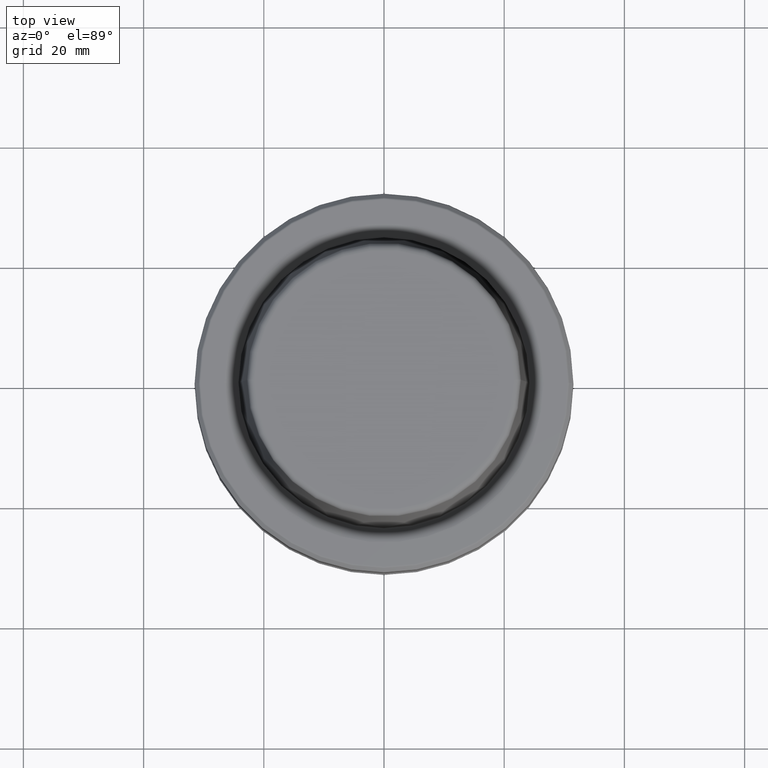
[diagram: clean part render]
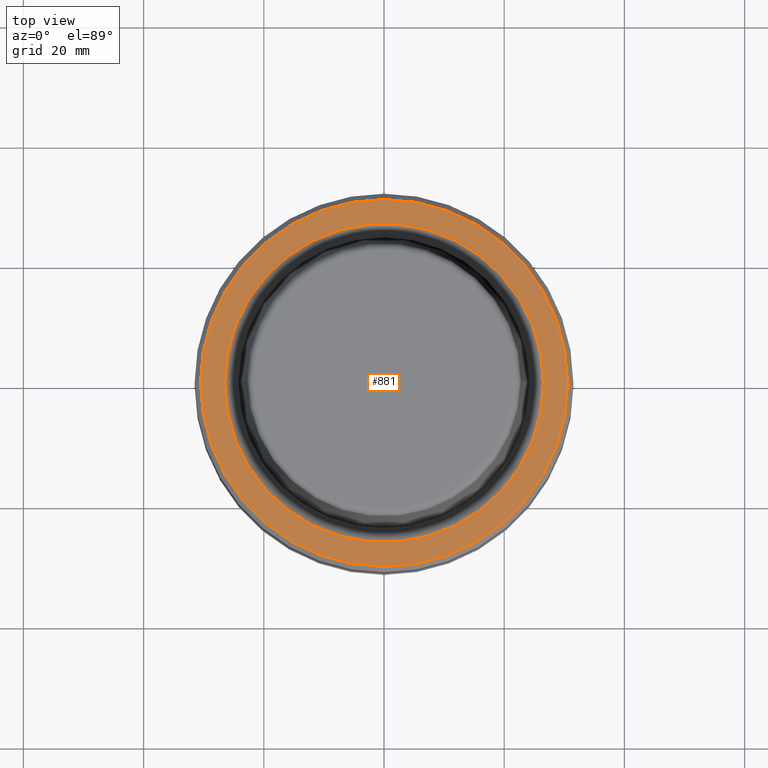
[diagram: same view with one face highlighted and labeled with its STEP entity id]
A machine part, top view. The second image highlights one B-rep face of the part: STEP entity #881.
In plain terms, the highlighted planar face has unit normal (0, 0, -1).
Its self-contained STEP definition (entity closure, byte-faithful):
#6 = AXIS2_PLACEMENT_3D ( 'NONE', #155, #1238, #545 ) ;
#10 = EDGE_CURVE ( 'NONE', #91, #1128, #656, .T. ) ;
#28 = DIRECTION ( 'NONE',  ( 1.000000000000000000, 0.0000000000000000000, 0.0000000000000000000 ) ) ;
#76 = AXIS2_PLACEMENT_3D ( 'NONE', #1121, #1025, #891 ) ;
#85 = AXIS2_PLACEMENT_3D ( 'NONE', #736, #793, #811 ) ;
#91 = VERTEX_POINT ( 'NONE', #195 ) ;
#95 = DIRECTION ( 'NONE',  ( 1.000000000000000000, 0.0000000000000000000, 0.0000000000000000000 ) ) ;
#155 = CARTESIAN_POINT ( 'NONE',  ( 0.0000000000000000000, 26.52499999999999900, -1.111307226797642000E-015 ) ) ;
#162 = EDGE_LOOP ( 'NONE', ( #1052, #1181 ) ) ;
#182 = DIRECTION ( 'NONE',  ( -0.0000000000000000000, -0.0000000000000000000, 1.000000000000000000 ) ) ;
#186 = CIRCLE ( 'NONE', #929, 30.53431457505076100 ) ;
#195 = CARTESIAN_POINT ( 'NONE',  ( -26.52499999999999900, 3.248375634738354300E-015, 0.0000000000000000000 ) ) ;
#233 = AXIS2_PLACEMENT_3D ( 'NONE', #995, #182, #28 ) ;
#265 = EDGE_CURVE ( 'NONE', #1077, #347, #994, .T. ) ;
#347 = VERTEX_POINT ( 'NONE', #640 ) ;
#382 = EDGE_CURVE ( 'NONE', #1128, #91, #696, .T. ) ;
#414 = CARTESIAN_POINT ( 'NONE',  ( 26.52499999999999900, 0.0000000000000000000, 0.0000000000000000000 ) ) ;
#491 = EDGE_CURVE ( 'NONE', #347, #1077, #186, .T. ) ;
#545 = DIRECTION ( 'NONE',  ( -1.000000000000000000, 0.0000000000000000000, -0.0000000000000000000 ) ) ;
#640 = CARTESIAN_POINT ( 'NONE',  ( -30.53431457505076100, 3.756694181974138600E-015, 0.0000000000000000000 ) ) ;
#656 = CIRCLE ( 'NONE', #233, 26.52499999999999900 ) ;
#696 = CIRCLE ( 'NONE', #76, 26.52499999999999900 ) ;
#736 = CARTESIAN_POINT ( 'NONE',  ( 0.0000000000000000000, 0.0000000000000000000, 0.0000000000000000000 ) ) ;
#793 = DIRECTION ( 'NONE',  ( -0.0000000000000000000, -0.0000000000000000000, 1.000000000000000000 ) ) ;
#809 = CARTESIAN_POINT ( 'NONE',  ( 30.53431457505076100, 0.0000000000000000000, 0.0000000000000000000 ) ) ;
#811 = DIRECTION ( 'NONE',  ( 1.000000000000000000, 0.0000000000000000000, 0.0000000000000000000 ) ) ;
#850 = ORIENTED_EDGE ( 'NONE', *, *, #265, .T. ) ;
#852 = FACE_OUTER_BOUND ( 'NONE', #1158, .T. ) ;
#881 = ADVANCED_FACE ( 'NONE', ( #1075, #852 ), #1055, .F. ) ;
#891 = DIRECTION ( 'NONE',  ( 1.000000000000000000, 0.0000000000000000000, 0.0000000000000000000 ) ) ;
#929 = AXIS2_PLACEMENT_3D ( 'NONE', #980, #1161, #95 ) ;
#977 = ORIENTED_EDGE ( 'NONE', *, *, #491, .T. ) ;
#980 = CARTESIAN_POINT ( 'NONE',  ( 0.0000000000000000000, 0.0000000000000000000, 0.0000000000000000000 ) ) ;
#994 = CIRCLE ( 'NONE', #85, 30.53431457505076100 ) ;
#995 = CARTESIAN_POINT ( 'NONE',  ( 0.0000000000000000000, 0.0000000000000000000, 0.0000000000000000000 ) ) ;
#1025 = DIRECTION ( 'NONE',  ( -0.0000000000000000000, -0.0000000000000000000, 1.000000000000000000 ) ) ;
#1052 = ORIENTED_EDGE ( 'NONE', *, *, #382, .F. ) ;
#1055 = PLANE ( 'NONE',  #6 ) ;
#1075 = FACE_BOUND ( 'NONE', #162, .T. ) ;
#1077 = VERTEX_POINT ( 'NONE', #809 ) ;
#1121 = CARTESIAN_POINT ( 'NONE',  ( 0.0000000000000000000, 0.0000000000000000000, 0.0000000000000000000 ) ) ;
#1128 = VERTEX_POINT ( 'NONE', #414 ) ;
#1158 = EDGE_LOOP ( 'NONE', ( #850, #977 ) ) ;
#1161 = DIRECTION ( 'NONE',  ( -0.0000000000000000000, -0.0000000000000000000, 1.000000000000000000 ) ) ;
#1181 = ORIENTED_EDGE ( 'NONE', *, *, #10, .F. ) ;
#1238 = DIRECTION ( 'NONE',  ( 0.0000000000000000000, 0.0000000000000000000, -1.000000000000000000 ) ) ;